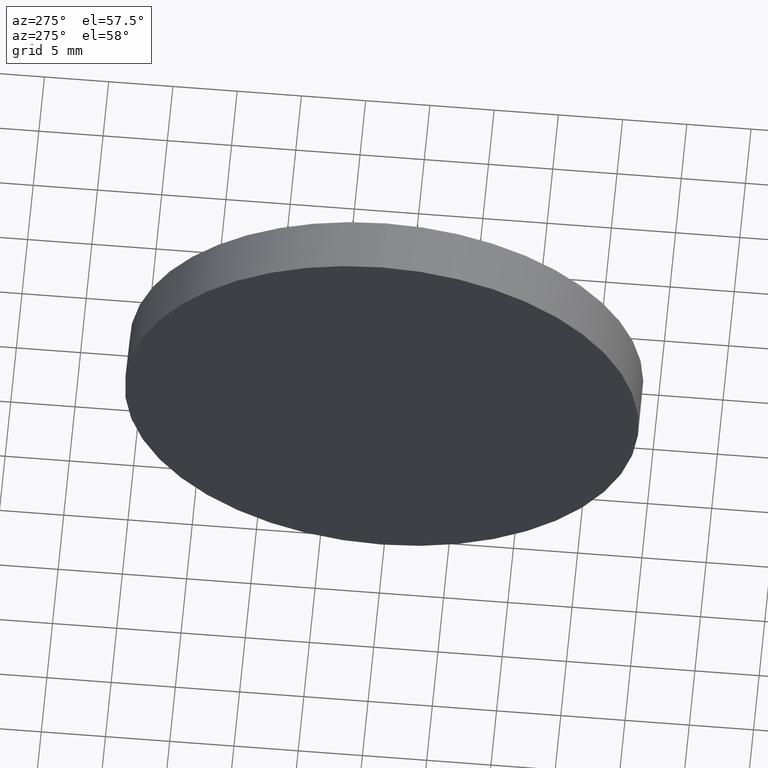
[diagram: clean part render]
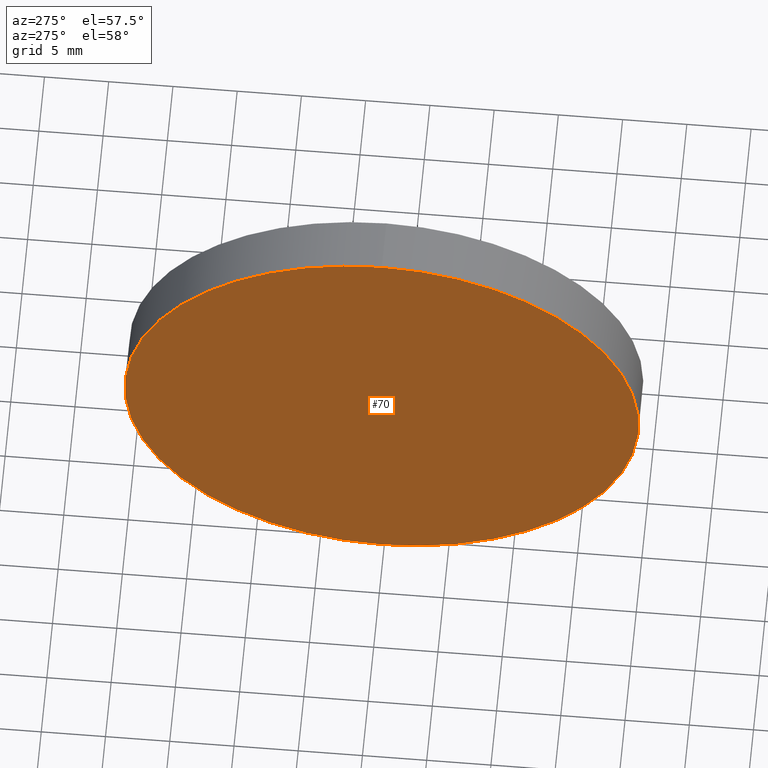
[diagram: same view with one face highlighted and labeled with its STEP entity id]
A machine part, auxiliary view. The second image highlights one B-rep face of the part: STEP entity #70.
In plain terms, the highlighted planar face has unit normal (1, 0, 0).
Its self-contained STEP definition (entity closure, byte-faithful):
#7 = FACE_OUTER_BOUND ( 'NONE', #118, .T. ) ;
#11 = CARTESIAN_POINT ( 'NONE',  ( 113.9119316741596200, 65.15563045701519200, 20.00000000000000400 ) ) ;
#21 = EDGE_CURVE ( 'NONE', #139, #51, #112, .T. ) ;
#25 = CARTESIAN_POINT ( 'NONE',  ( 113.9119316741596200, 65.15563045701519200, -20.00000000000000400 ) ) ;
#28 = DIRECTION ( 'NONE',  ( 1.000000000000000000, 0.0000000000000000000, 0.0000000000000000000 ) ) ;
#31 = DIRECTION ( 'NONE',  ( 0.0000000000000000000, 0.0000000000000000000, 1.000000000000000000 ) ) ;
#35 = ORIENTED_EDGE ( 'NONE', *, *, #21, .T. ) ;
#51 = VERTEX_POINT ( 'NONE', #25 ) ;
#62 = AXIS2_PLACEMENT_3D ( 'NONE', #138, #113, #31 ) ;
#63 = DIRECTION ( 'NONE',  ( -1.000000000000000000, -0.0000000000000000000, -0.0000000000000000000 ) ) ;
#64 = CARTESIAN_POINT ( 'NONE',  ( 113.9119316741596200, 65.15563045701519200, 0.0000000000000000000 ) ) ;
#65 = DIRECTION ( 'NONE',  ( 0.0000000000000000000, 0.0000000000000000000, -1.000000000000000000 ) ) ;
#68 = ORIENTED_EDGE ( 'NONE', *, *, #183, .T. ) ;
#70 = ADVANCED_FACE ( 'NONE', ( #7 ), #97, .F. ) ;
#97 = PLANE ( 'NONE',  #161 ) ;
#112 = CIRCLE ( 'NONE', #124, 20.00000000000000400 ) ;
#113 = DIRECTION ( 'NONE',  ( -1.000000000000000000, -0.0000000000000000000, -0.0000000000000000000 ) ) ;
#118 = EDGE_LOOP ( 'NONE', ( #35, #68 ) ) ;
#124 = AXIS2_PLACEMENT_3D ( 'NONE', #135, #63, #164 ) ;
#135 = CARTESIAN_POINT ( 'NONE',  ( 113.9119316741596200, 65.15563045701519200, 0.0000000000000000000 ) ) ;
#138 = CARTESIAN_POINT ( 'NONE',  ( 113.9119316741596200, 65.15563045701519200, 0.0000000000000000000 ) ) ;
#139 = VERTEX_POINT ( 'NONE', #11 ) ;
#161 = AXIS2_PLACEMENT_3D ( 'NONE', #64, #28, #65 ) ;
#164 = DIRECTION ( 'NONE',  ( 0.0000000000000000000, 0.0000000000000000000, 1.000000000000000000 ) ) ;
#170 = CIRCLE ( 'NONE', #62, 20.00000000000000400 ) ;
#183 = EDGE_CURVE ( 'NONE', #51, #139, #170, .T. ) ;